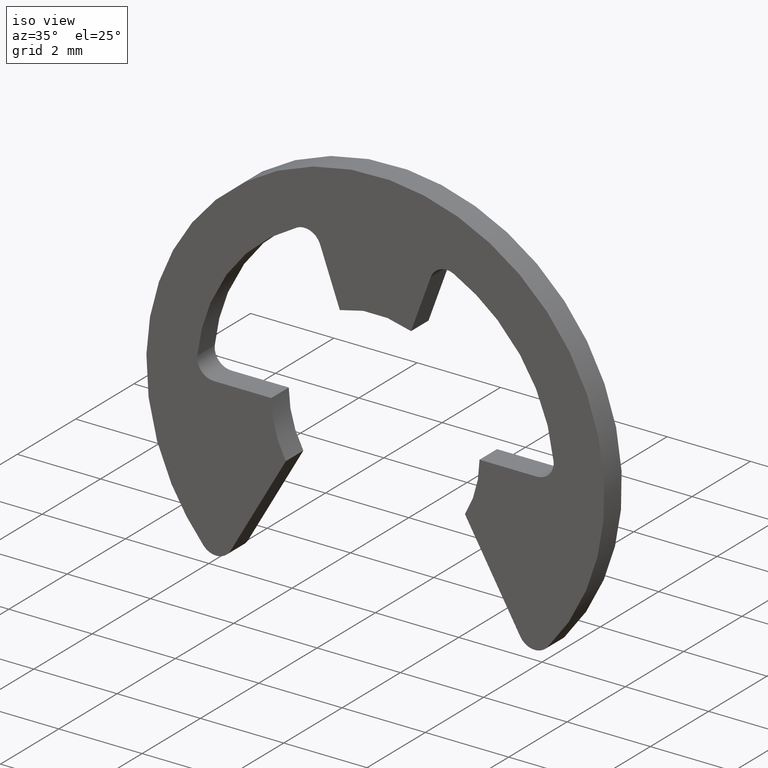
[diagram: clean part render]
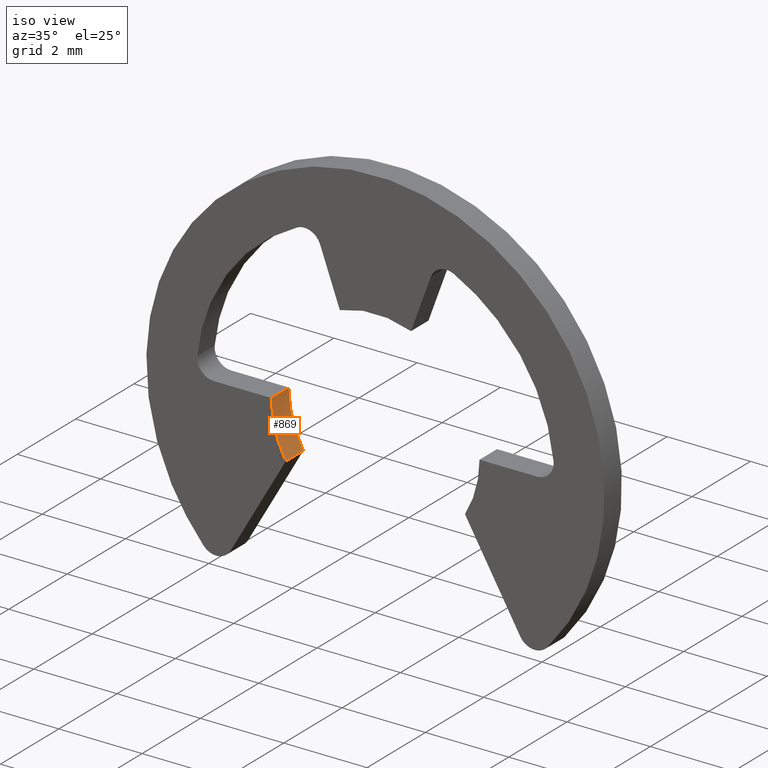
[diagram: same view with one face highlighted and labeled with its STEP entity id]
A machine part, iso view. The second image highlights one B-rep face of the part: STEP entity #869.
In plain terms, the highlighted face is a freeform B-spline surface patch.
Its self-contained STEP definition (entity closure, byte-faithful):
#87=CARTESIAN_POINT('',(-2.150000000000000,0.0,-1.275733999999964));
#88=VERTEX_POINT('',#87);
#94=CARTESIAN_POINT('',(-2.499999999999815,0.0,0.000000959931088));
#95=VERTEX_POINT('',#94);
#96=CARTESIAN_POINT('',(-2.499999999999816,0.0,0.000000959931088));
#97=CARTESIAN_POINT('',(-2.500000263358481,0.0,-0.685878132241590));
#98=CARTESIAN_POINT('',(-2.150000000000000,0.0,-1.275733999999964));
#106=(BOUNDED_CURVE()B_SPLINE_CURVE(2,(#96,#97,#98),.UNSPECIFIED.,.F.,.U.)CURVE()GEOMETRIC_REPRESENTATION_ITEM()QUASI_UNIFORM_CURVE()RATIONAL_B_SPLINE_CURVE((1.0,0.964365074552909,1.0))REPRESENTATION_ITEM(''));
#107=EDGE_CURVE('',#95,#88,#106,.T.);
#489=CARTESIAN_POINT('',(-2.499999999999815,0.600000000000045,0.000000959931088));
#490=VERTEX_POINT('',#489);
#496=CARTESIAN_POINT('',(-2.150000000000000,0.600000000000045,-1.275733999999964));
#497=VERTEX_POINT('',#496);
#498=CARTESIAN_POINT('',(-2.499999999999816,0.600000000000045,0.000000959931088));
#499=CARTESIAN_POINT('',(-2.500000263358481,0.600000000000045,-0.685878132241590));
#500=CARTESIAN_POINT('',(-2.150000000000000,0.600000000000045,-1.275733999999964));
#508=(BOUNDED_CURVE()B_SPLINE_CURVE(2,(#498,#499,#500),.UNSPECIFIED.,.F.,.U.)CURVE()GEOMETRIC_REPRESENTATION_ITEM()QUASI_UNIFORM_CURVE()RATIONAL_B_SPLINE_CURVE((1.0,0.964365074552909,1.0))REPRESENTATION_ITEM(''));
#509=EDGE_CURVE('',#490,#497,#508,.T.);
#835=CARTESIAN_POINT('',(-2.499999999999815,0.600000000000045,0.000000959931088));
#836=CARTESIAN_POINT('',(-2.499999999999815,0.0,0.000000959931088));
#837=QUASI_UNIFORM_CURVE('',1,(#835,#836),.UNSPECIFIED.,.F.,.U.);
#838=EDGE_CURVE('',#490,#95,#837,.T.);
#845=CARTESIAN_POINT('',(-2.138785869007326,0.615000000000046,-1.294447761222743));
#846=CARTESIAN_POINT('',(-2.138785869007326,-0.015375000000001,-1.294447761222743));
#847=CARTESIAN_POINT('',(-2.518527400335995,0.615000000000046,-0.667009678813173));
#848=CARTESIAN_POINT('',(-2.518527400335995,-0.015375000000001,-0.667009678813173));
#849=CARTESIAN_POINT('',(-2.499124996154714,0.615000000000046,0.066138140242185));
#850=CARTESIAN_POINT('',(-2.499124996154714,-0.015375000000001,0.066138140242185));
#858=(BOUNDED_SURFACE()B_SPLINE_SURFACE(1,2,((#845,#847,#849),(#846,#848,#850)),.UNSPECIFIED.,.F.,.F.,.U.)B_SPLINE_SURFACE_WITH_KNOTS((2,2),(3,3),(0.0,1.0),(0.0,0.961242481325008),.UNSPECIFIED.)GEOMETRIC_REPRESENTATION_ITEM()RATIONAL_B_SPLINE_SURFACE(((1.0,0.957998275199807,0.996744234733349),(1.0,0.957998275199807,0.996744234733349)))REPRESENTATION_ITEM('')SURFACE());
#859=ORIENTED_EDGE('',*,*,#107,.T.);
#860=CARTESIAN_POINT('',(-2.150000000000000,0.600000000000045,-1.275733999999964));
#861=CARTESIAN_POINT('',(-2.150000000000000,0.0,-1.275733999999964));
#862=QUASI_UNIFORM_CURVE('',1,(#860,#861),.UNSPECIFIED.,.F.,.U.);
#863=EDGE_CURVE('',#497,#88,#862,.T.);
#864=ORIENTED_EDGE('',*,*,#863,.F.);
#865=ORIENTED_EDGE('',*,*,#509,.F.);
#866=ORIENTED_EDGE('',*,*,#838,.T.);
#867=EDGE_LOOP('',(#859,#864,#865,#866));
#868=FACE_OUTER_BOUND('',#867,.T.);
#869=ADVANCED_FACE('',(#868),#858,.F.);